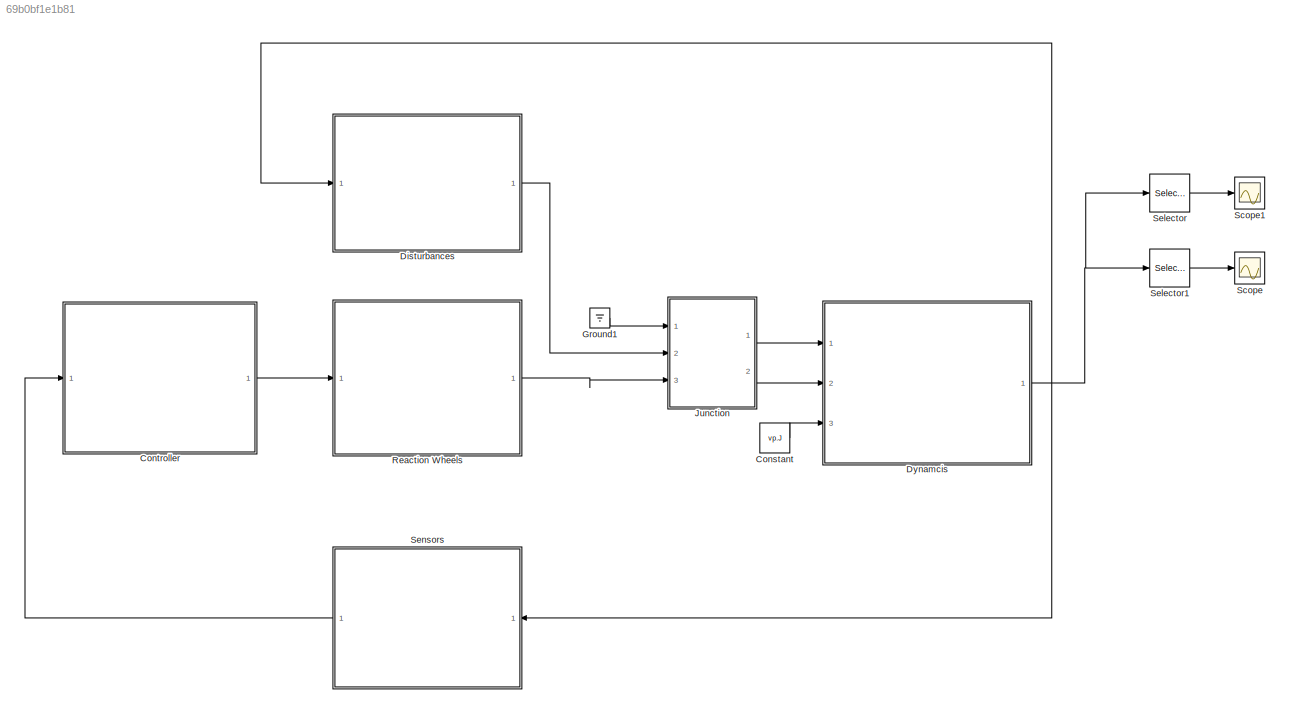
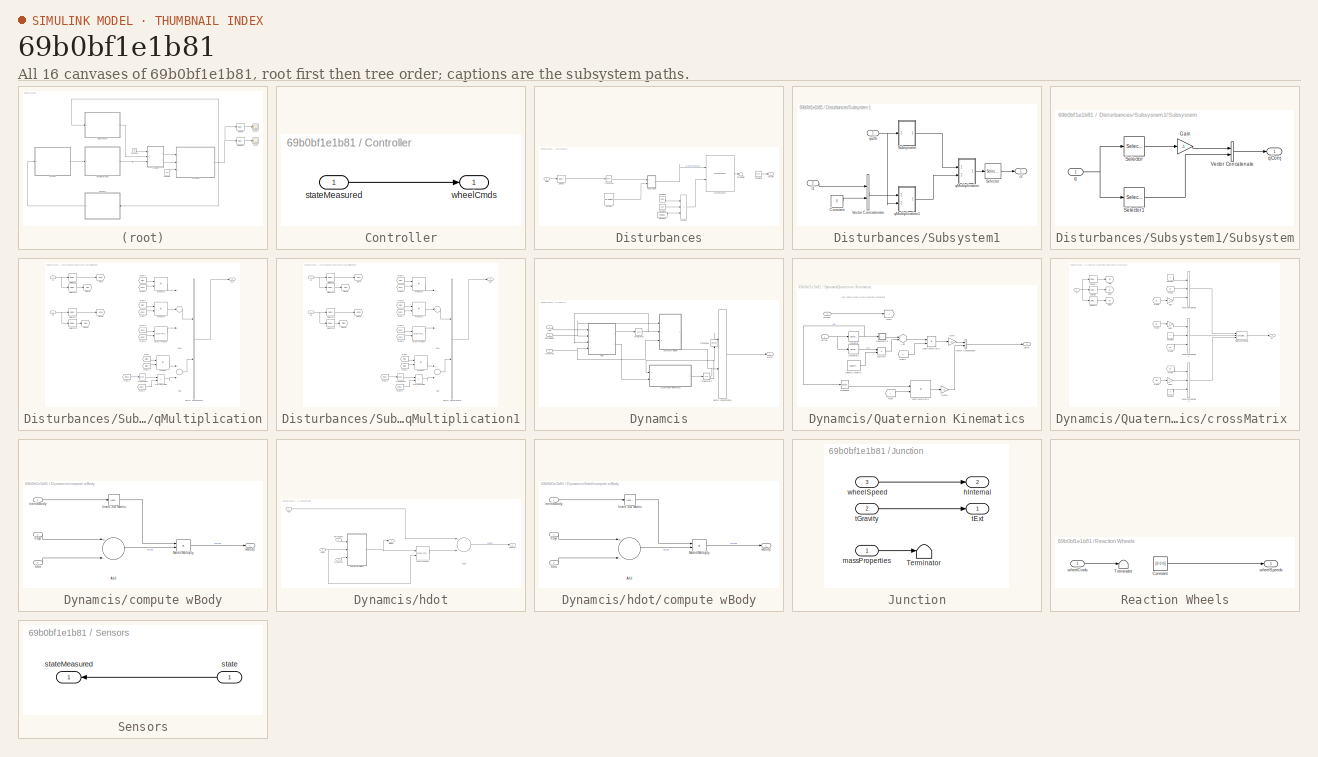
[diagram: thumbnail index - all 16 canvases of the model, root first then tree order]
MODEL slx_69b0bf1e1b81
KIND model
CONFIG AbsTol = auto
CONFIG EnableMultiTasking = off
CONFIG FixedStep = auto
CONFIG MaxStep = auto
CONFIG MinStep = auto
CONFIG RelTol = 1e-7
CONFIG SampleTimeConstraint = Unconstrained
CONFIG Solver = ode45
CONFIG SolverName = ode45
CONFIG StartTime = 0.0
CONFIG StopTime = 25
BLOCK [Constant] Constant
  Value = vp.J
BLOCK [SubSystem] Controller
  Ports = [1, 1]
  RequestExecContextInheritance = off
BLOCK [Inport] Controller/stateMeasured
  IconDisplay = Port number
BLOCK [Outport] Controller/wheelCmds
  IconDisplay = Port number
BLOCK [SubSystem] Disturbances
  Ports = [1, 1]
  RequestExecContextInheritance = off
BLOCK [Constant] Disturbances/Constant
  Value = vp.gVect
BLOCK [Constant] Disturbances/Constant1
  Value = vp.mass
BLOCK [Constant] Disturbances/Constant2
  Value = -vp.g
BLOCK [Constant] Disturbances/Constant3
  Value = vp.r32
BLOCK [Constant] Disturbances/Constant4
  Value = [0 0 0]
BLOCK [Reference] Disturbances/Cross Product  REF=vrlib/Utilities/Cross Product
  Ports = [2, 1]
  SourceBlock = vrlib/Utilities/Cross Product
  SourceProductBaseCode = VR
  SourceProductName = Simulink 3D Animation
  SourceType = Cross Product
BLOCK [Product] Disturbances/Product
  InputSameDT = off
  Inputs = 3
  OutDataTypeStr = Inherit: Inherit via internal rule
  Ports = [3, 1]
  RndMeth = Floor
  SaturateOnIntegerOverflow = off
BLOCK [Selector] Disturbances/Selector
  IndexOptions = Index vector (dialog)
  Indices = [1:4]
  InputPortWidth = 7
  OutputSizes = 1
  Ports = [1, 1]
BLOCK [SubSystem] Disturbances/Subsystem1
  Ports = [2, 1]
  RequestExecContextInheritance = off
BLOCK [Constant] Disturbances/Subsystem1/Constant
  Value = 0
BLOCK [Selector] Disturbances/Subsystem1/Selector
  IndexOptions = Index vector (dialog)
  Indices = [1:3]
  InputPortWidth = 4
  OutputSizes = 1
  Ports = [1, 1]
BLOCK [SubSystem] Disturbances/Subsystem1/Subsystem
  Ports = [1, 1]
  RequestExecContextInheritance = off
BLOCK [Gain] Disturbances/Subsystem1/Subsystem/Gain
  Gain = -1
  OutDataTypeStr = Inherit: Inherit via internal rule
  ParamDataTypeStr = Inherit: Inherit via internal rule
  SaturateOnIntegerOverflow = off
BLOCK [Selector] Disturbances/Subsystem1/Subsystem/Selector
  IndexOptions = Index vector (dialog)
  Indices = [1:3]
  InputPortWidth = 4
  OutputSizes = 1
  Ports = [1, 1]
BLOCK [Selector] Disturbances/Subsystem1/Subsystem/Selector1
  IndexOptions = Index vector (dialog)
  Indices = 4
  InputPortWidth = 4
  OutputSizes = 1
  Ports = [1, 1]
BLOCK [Concatenate] Disturbances/Subsystem1/Subsystem/Vector Concatenate
  Ports = [2, 1]
BLOCK [Inport] Disturbances/Subsystem1/Subsystem/q
  IconDisplay = Port number
BLOCK [Outport] Disturbances/Subsystem1/Subsystem/qConj
  IconDisplay = Port number
BLOCK [Concatenate] Disturbances/Subsystem1/Vector Concatenate
  Ports = [2, 1]
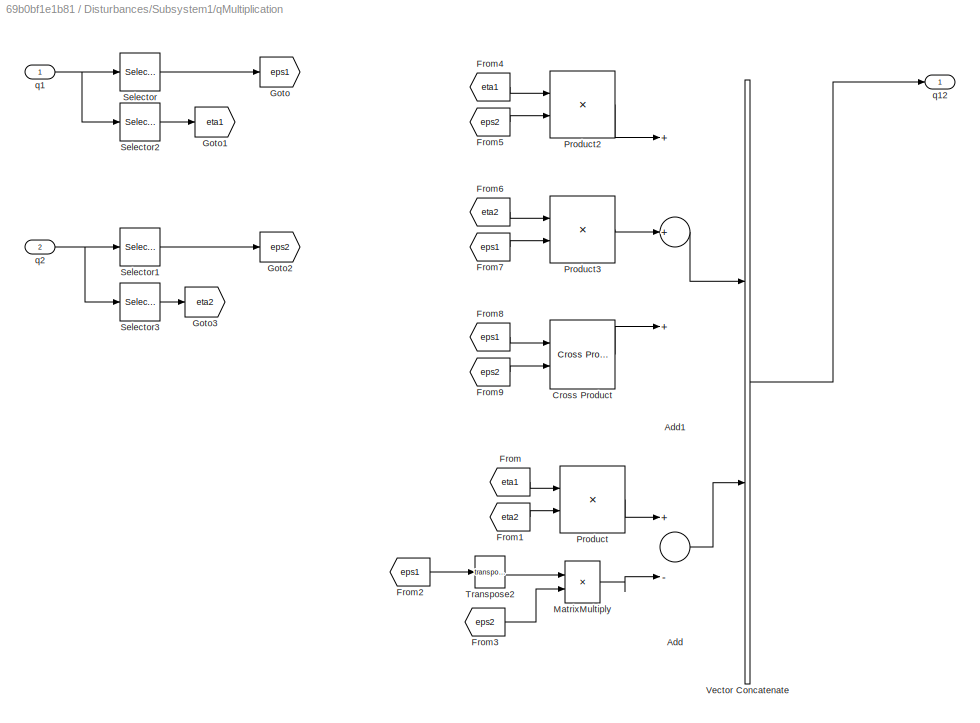
BLOCK [SubSystem] Disturbances/Subsystem1/qMultiplication
  Ports = [2, 1]
  RequestExecContextInheritance = off
BLOCK [Sum] Disturbances/Subsystem1/qMultiplication/Add
  InputSameDT = off
  Inputs = +-
  OutDataTypeStr = Inherit: Inherit via internal rule
  Ports = [2, 1]
  SaturateOnIntegerOverflow = off
BLOCK [Sum] Disturbances/Subsystem1/qMultiplication/Add1
  InputSameDT = off
  Inputs = +++
  OutDataTypeStr = Inherit: Inherit via internal rule
  Ports = [3, 1]
  SaturateOnIntegerOverflow = off
BLOCK [Reference] Disturbances/Subsystem1/qMultiplication/Cross Product  REF=vrlib/Utilities/Cross Product
  Ports = [2, 1]
  SourceBlock = vrlib/Utilities/Cross Product
  SourceProductBaseCode = VR
  SourceProductName = Simulink 3D Animation
  SourceType = Cross Product
BLOCK [From] Disturbances/Subsystem1/qMultiplication/From
  GotoTag = eta1
BLOCK [From] Disturbances/Subsystem1/qMultiplication/From1
  GotoTag = eta2
BLOCK [From] Disturbances/Subsystem1/qMultiplication/From2
  GotoTag = eps1
BLOCK [From] Disturbances/Subsystem1/qMultiplication/From3
  GotoTag = eps2
BLOCK [From] Disturbances/Subsystem1/qMultiplication/From4
  GotoTag = eta1
BLOCK [From] Disturbances/Subsystem1/qMultiplication/From5
  GotoTag = eps2
BLOCK [From] Disturbances/Subsystem1/qMultiplication/From6
  GotoTag = eta2
BLOCK [From] Disturbances/Subsystem1/qMultiplication/From7
  GotoTag = eps1
BLOCK [From] Disturbances/Subsystem1/qMultiplication/From8
  GotoTag = eps1
BLOCK [From] Disturbances/Subsystem1/qMultiplication/From9
  GotoTag = eps2
BLOCK [Goto] Disturbances/Subsystem1/qMultiplication/Goto
  GotoTag = eps1
BLOCK [Goto] Disturbances/Subsystem1/qMultiplication/Goto1
  GotoTag = eta1
BLOCK [Goto] Disturbances/Subsystem1/qMultiplication/Goto2
  GotoTag = eps2
BLOCK [Goto] Disturbances/Subsystem1/qMultiplication/Goto3
  GotoTag = eta2
BLOCK [Product] Disturbances/Subsystem1/qMultiplication/MatrixMultiply
  InputSameDT = off
  Multiplication = Matrix(*)
  OutDataTypeStr = Inherit: Inherit via internal rule
  Ports = [2, 1]
  RndMeth = Floor
  SaturateOnIntegerOverflow = off
BLOCK [Product] Disturbances/Subsystem1/qMultiplication/Product
  InputSameDT = off
  OutDataTypeStr = Inherit: Inherit via internal rule
  Ports = [2, 1]
  RndMeth = Floor
  SaturateOnIntegerOverflow = off
BLOCK [Product] Disturbances/Subsystem1/qMultiplication/Product2
  InputSameDT = off
  OutDataTypeStr = Inherit: Inherit via internal rule
  Ports = [2, 1]
  RndMeth = Floor
  SaturateOnIntegerOverflow = off
BLOCK [Product] Disturbances/Subsystem1/qMultiplication/Product3
  InputSameDT = off
  OutDataTypeStr = Inherit: Inherit via internal rule
  Ports = [2, 1]
  RndMeth = Floor
  SaturateOnIntegerOverflow = off
BLOCK [Selector] Disturbances/Subsystem1/qMultiplication/Selector
  IndexOptions = Index vector (dialog)
  Indices = [1:3]
  InputPortWidth = 4
  OutputSizes = 1
  Ports = [1, 1]
BLOCK [Selector] Disturbances/Subsystem1/qMultiplication/Selector1
  IndexOptions = Index vector (dialog)
  Indices = [1:3]
  InputPortWidth = 4
  OutputSizes = 1
  Ports = [1, 1]
BLOCK [Selector] Disturbances/Subsystem1/qMultiplication/Selector2
  IndexOptions = Index vector (dialog)
  Indices = 4
  InputPortWidth = 4
  OutputSizes = 1
  Ports = [1, 1]
BLOCK [Selector] Disturbances/Subsystem1/qMultiplication/Selector3
  IndexOptions = Index vector (dialog)
  Indices = 4
  InputPortWidth = 4
  OutputSizes = 1
  Ports = [1, 1]
BLOCK [Math] Disturbances/Subsystem1/qMultiplication/Transpose2
  Operator = transpose
  Ports = [1, 1]
BLOCK [Concatenate] Disturbances/Subsystem1/qMultiplication/Vector Concatenate
  Ports = [2, 1]
BLOCK [Inport] Disturbances/Subsystem1/qMultiplication/q1
  IconDisplay = Port number
BLOCK [Outport] Disturbances/Subsystem1/qMultiplication/q12
  IconDisplay = Port number
BLOCK [Inport] Disturbances/Subsystem1/qMultiplication/q2
  IconDisplay = Port number
  Port = 2
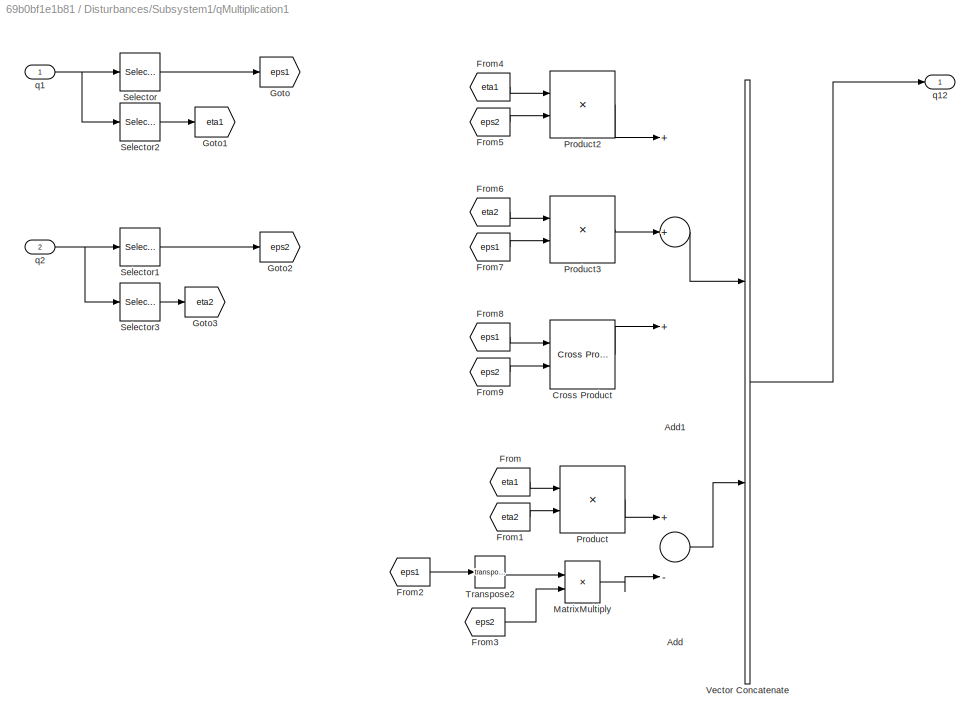
BLOCK [SubSystem] Disturbances/Subsystem1/qMultiplication1
  Ports = [2, 1]
  RequestExecContextInheritance = off
BLOCK [Sum] Disturbances/Subsystem1/qMultiplication1/Add
  InputSameDT = off
  Inputs = +-
  OutDataTypeStr = Inherit: Inherit via internal rule
  Ports = [2, 1]
  SaturateOnIntegerOverflow = off
BLOCK [Sum] Disturbances/Subsystem1/qMultiplication1/Add1
  InputSameDT = off
  Inputs = +++
  OutDataTypeStr = Inherit: Inherit via internal rule
  Ports = [3, 1]
  SaturateOnIntegerOverflow = off
BLOCK [Reference] Disturbances/Subsystem1/qMultiplication1/Cross Product  REF=vrlib/Utilities/Cross Product
  Ports = [2, 1]
  SourceBlock = vrlib/Utilities/Cross Product
  SourceProductBaseCode = VR
  SourceProductName = Simulink 3D Animation
  SourceType = Cross Product
BLOCK [From] Disturbances/Subsystem1/qMultiplication1/From
  GotoTag = eta1
BLOCK [From] Disturbances/Subsystem1/qMultiplication1/From1
  GotoTag = eta2
BLOCK [From] Disturbances/Subsystem1/qMultiplication1/From2
  GotoTag = eps1
BLOCK [From] Disturbances/Subsystem1/qMultiplication1/From3
  GotoTag = eps2
BLOCK [From] Disturbances/Subsystem1/qMultiplication1/From4
  GotoTag = eta1
BLOCK [From] Disturbances/Subsystem1/qMultiplication1/From5
  GotoTag = eps2
BLOCK [From] Disturbances/Subsystem1/qMultiplication1/From6
  GotoTag = eta2
BLOCK [From] Disturbances/Subsystem1/qMultiplication1/From7
  GotoTag = eps1
BLOCK [From] Disturbances/Subsystem1/qMultiplication1/From8
  GotoTag = eps1
BLOCK [From] Disturbances/Subsystem1/qMultiplication1/From9
  GotoTag = eps2
BLOCK [Goto] Disturbances/Subsystem1/qMultiplication1/Goto
  GotoTag = eps1
BLOCK [Goto] Disturbances/Subsystem1/qMultiplication1/Goto1
  GotoTag = eta1
BLOCK [Goto] Disturbances/Subsystem1/qMultiplication1/Goto2
  GotoTag = eps2
BLOCK [Goto] Disturbances/Subsystem1/qMultiplication1/Goto3
  GotoTag = eta2
BLOCK [Product] Disturbances/Subsystem1/qMultiplication1/MatrixMultiply
  InputSameDT = off
  Multiplication = Matrix(*)
  OutDataTypeStr = Inherit: Inherit via internal rule
  Ports = [2, 1]
  RndMeth = Floor
  SaturateOnIntegerOverflow = off
BLOCK [Product] Disturbances/Subsystem1/qMultiplication1/Product
  InputSameDT = off
  OutDataTypeStr = Inherit: Inherit via internal rule
  Ports = [2, 1]
  RndMeth = Floor
  SaturateOnIntegerOverflow = off
BLOCK [Product] Disturbances/Subsystem1/qMultiplication1/Product2
  InputSameDT = off
  OutDataTypeStr = Inherit: Inherit via internal rule
  Ports = [2, 1]
  RndMeth = Floor
  SaturateOnIntegerOverflow = off
BLOCK [Product] Disturbances/Subsystem1/qMultiplication1/Product3
  InputSameDT = off
  OutDataTypeStr = Inherit: Inherit via internal rule
  Ports = [2, 1]
  RndMeth = Floor
  SaturateOnIntegerOverflow = off
BLOCK [Selector] Disturbances/Subsystem1/qMultiplication1/Selector
  IndexOptions = Index vector (dialog)
  Indices = [1:3]
  InputPortWidth = 4
  OutputSizes = 1
  Ports = [1, 1]
BLOCK [Selector] Disturbances/Subsystem1/qMultiplication1/Selector1
  IndexOptions = Index vector (dialog)
  Indices = [1:3]
  InputPortWidth = 4
  OutputSizes = 1
  Ports = [1, 1]
BLOCK [Selector] Disturbances/Subsystem1/qMultiplication1/Selector2
  IndexOptions = Index vector (dialog)
  Indices = 4
  InputPortWidth = 4
  OutputSizes = 1
  Ports = [1, 1]
BLOCK [Selector] Disturbances/Subsystem1/qMultiplication1/Selector3
  IndexOptions = Index vector (dialog)
  Indices = 4
  InputPortWidth = 4
  OutputSizes = 1
  Ports = [1, 1]
BLOCK [Math] Disturbances/Subsystem1/qMultiplication1/Transpose2
  Operator = transpose
  Ports = [1, 1]
BLOCK [Concatenate] Disturbances/Subsystem1/qMultiplication1/Vector Concatenate
  Ports = [2, 1]
BLOCK [Inport] Disturbances/Subsystem1/qMultiplication1/q1
  IconDisplay = Port number
BLOCK [Outport] Disturbances/Subsystem1/qMultiplication1/q12
  IconDisplay = Port number
BLOCK [Inport] Disturbances/Subsystem1/qMultiplication1/q2
  IconDisplay = Port number
  Port = 2
BLOCK [Inport] Disturbances/Subsystem1/qa2b
  IconDisplay = Port number
BLOCK [Inport] Disturbances/Subsystem1/r1
  IconDisplay = Port number
  Port = 2
BLOCK [Outport] Disturbances/Subsystem1/r2
  IconDisplay = Port number
BLOCK [Terminator] Disturbances/Terminator
BLOCK [Math] Disturbances/Transpose
  Operator = transpose
  Ports = [1, 1]
BLOCK [Inport] Disturbances/state 
  IconDisplay = Port number
BLOCK [Outport] Disturbances/tGravity
  IconDisplay = Port number
BLOCK [SubSystem] Dynamcis
  Ports = [3, 1]
  RequestExecContextInheritance = off
BLOCK [Integrator] Dynamcis/Integrator
  InitialCondition = Hsys0
  Ports = [1, 1]
BLOCK [Integrator] Dynamcis/Integrator1
  InitialCondition = qBody0
  Ports = [1, 1]
BLOCK [SubSystem] Dynamcis/Quaternion Kinematics
  Ports = [2, 1]
  RequestExecContextInheritance = off
BLOCK [Sum] Dynamcis/Quaternion Kinematics/Add
  InputSameDT = off
  OutDataTypeStr = Inherit: Inherit via internal rule
  Ports = [2, 1]
  SaturateOnIntegerOverflow = off
BLOCK [From] Dynamcis/Quaternion Kinematics/From
BLOCK [From] Dynamcis/Quaternion Kinematics/From1
BLOCK [Gain] Dynamcis/Quaternion Kinematics/Gain
  Gain = 1/2
  OutDataTypeStr = Inherit: Inherit via internal rule
  ParamDataTypeStr = Inherit: Inherit via internal rule
  SaturateOnIntegerOverflow = off
BLOCK [Gain] Dynamcis/Quaternion Kinematics/Gain1
  Gain = -1/2
  OutDataTypeStr = Inherit: Inherit via internal rule
  ParamDataTypeStr = Inherit: Inherit via internal rule
  SaturateOnIntegerOverflow = off
BLOCK [Goto] Dynamcis/Quaternion Kinematics/Goto
BLOCK [Reference] Dynamcis/Quaternion Kinematics/Identity Matrix  REF=dspmtrx3/Identity Matrix
  Ports = [0, 1]
  SourceBlock = dspmtrx3/Identity Matrix
  SourceProductBaseCode = DS
  SourceProductName = DSP System Toolbox
  SourceType = Identity Matrix
BLOCK [Product] Dynamcis/Quaternion Kinematics/MatrixMultiply1
  InputSameDT = off
  Multiplication = Matrix(*)
  OutDataTypeStr = Inherit: Inherit via internal rule
  Ports = [2, 1]
  RndMeth = Floor
  SaturateOnIntegerOverflow = off
BLOCK [Product] Dynamcis/Quaternion Kinematics/MatrixMultiply2
  InputSameDT = off
  Multiplication = Matrix(*)
  OutDataTypeStr = Inherit: Inherit via internal rule
  Ports = [2, 1]
  RndMeth = Floor
  SaturateOnIntegerOverflow = off
BLOCK [Product] Dynamcis/Quaternion Kinematics/Multiply
  InputSameDT = off
  OutDataTypeStr = Inherit: Inherit via internal rule
  Ports = [2, 1]
  RndMeth = Floor
  SaturateOnIntegerOverflow = off
BLOCK [Selector] Dynamcis/Quaternion Kinematics/Selector
  IndexOptions = Index vector (dialog)
  Indices = [1:3]
  InputPortWidth = 4
  OutputSizes = 1
  Ports = [1, 1]
BLOCK [Selector] Dynamcis/Quaternion Kinematics/Selector1
  IndexOptions = Index vector (dialog)
  Indices = 4
  InputPortWidth = 4
  OutputSizes = 1
  Ports = [1, 1]
BLOCK [Math] Dynamcis/Quaternion Kinematics/Transpose
  Operator = transpose
  Ports = [1, 1]
BLOCK [Concatenate] Dynamcis/Quaternion Kinematics/Vector Concatenate
  Ports = [2, 1]
BLOCK [SubSystem] Dynamcis/Quaternion Kinematics/crossMatrix 
  Ports = [1, 1]
  RequestExecContextInheritance = off
BLOCK [Constant] Dynamcis/Quaternion Kinematics/crossMatrix /Constant
  Value = 0
BLOCK [Constant] Dynamcis/Quaternion Kinematics/crossMatrix /Constant1
  Value = 0
BLOCK [Constant] Dynamcis/Quaternion Kinematics/crossMatrix /Constant2
  Value = 0
BLOCK [From] Dynamcis/Quaternion Kinematics/crossMatrix /From1
  GotoTag = ay
BLOCK [From] Dynamcis/Quaternion Kinematics/crossMatrix /From3
  GotoTag = az
BLOCK [From] Dynamcis/Quaternion Kinematics/crossMatrix /From4
  GotoTag = az
BLOCK [From] Dynamcis/Quaternion Kinematics/crossMatrix /From5
  GotoTag = ax
BLOCK [From] Dynamcis/Quaternion Kinematics/crossMatrix /From6
  GotoTag = ay
BLOCK [From] Dynamcis/Quaternion Kinematics/crossMatrix /From7
  GotoTag = ax
BLOCK [Gain] Dynamcis/Quaternion Kinematics/crossMatrix /Gain
  Gain = -1
  OutDataTypeStr = Inherit: Inherit via internal rule
  ParamDataTypeStr = Inherit: Inherit via internal rule
  SaturateOnIntegerOverflow = off
BLOCK [Gain] Dynamcis/Quaternion Kinematics/crossMatrix /Gain1
  Gain = -1
  OutDataTypeStr = Inherit: Inherit via internal rule
  ParamDataTypeStr = Inherit: Inherit via internal rule
  SaturateOnIntegerOverflow = off
BLOCK [Gain] Dynamcis/Quaternion Kinematics/crossMatrix /Gain2
  Gain = -1
  OutDataTypeStr = Inherit: Inherit via internal rule
  ParamDataTypeStr = Inherit: Inherit via internal rule
  SaturateOnIntegerOverflow = off
BLOCK [Goto] Dynamcis/Quaternion Kinematics/crossMatrix /Goto
  GotoTag = ax
BLOCK [Goto] Dynamcis/Quaternion Kinematics/crossMatrix /Goto1
  GotoTag = ay
BLOCK [Goto] Dynamcis/Quaternion Kinematics/crossMatrix /Goto2
  GotoTag = az
BLOCK [Concatenate] Dynamcis/Quaternion Kinematics/crossMatrix /Matrix Concatenate
  ConcatenateDimension = 2
  Mode = Multidimensional array
  NumInputs = 3
  Ports = [3, 1]
BLOCK [Selector] Dynamcis/Quaternion Kinematics/crossMatrix /Selector
  IndexOptions = Index vector (dialog)
  Indices = 2
  InputPortWidth = 3
  OutputSizes = 1
  Ports = [1, 1]
BLOCK [Selector] Dynamcis/Quaternion Kinematics/crossMatrix /Selector1
  IndexOptions = Index vector (dialog)
  Indices = 1
  InputPortWidth = 3
  OutputSizes = 1
  Ports = [1, 1]
BLOCK [Selector] Dynamcis/Quaternion Kinematics/crossMatrix /Selector2
  IndexOptions = Index vector (dialog)
  Indices = 3
  InputPortWidth = 3
  OutputSizes = 1
  Ports = [1, 1]
BLOCK [Concatenate] Dynamcis/Quaternion Kinematics/crossMatrix /Vector Concatenate
  NumInputs = 3
  Ports = [3, 1]
BLOCK [Concatenate] Dynamcis/Quaternion Kinematics/crossMatrix /Vector Concatenate1
  NumInputs = 3
  Ports = [3, 1]
BLOCK [Concatenate] Dynamcis/Quaternion Kinematics/crossMatrix /Vector Concatenate2
  NumInputs = 3
  Ports = [3, 1]
BLOCK [Inport] Dynamcis/Quaternion Kinematics/crossMatrix /a
  IconDisplay = Port number
BLOCK [Outport] Dynamcis/Quaternion Kinematics/crossMatrix /aX
  IconDisplay = Port number
BLOCK [Outport] Dynamcis/Quaternion Kinematics/qDot
  IconDisplay = Port number
BLOCK [Inport] Dynamcis/Quaternion Kinematics/qPrev
  IconDisplay = Port number
BLOCK [Inport] Dynamcis/Quaternion Kinematics/wBody
  IconDisplay = Port number
  Port = 2
BLOCK [Math] Dynamcis/Transpose
  Operator = transpose
  Ports = [1, 1]
BLOCK [Concatenate] Dynamcis/Vector Concatenate
  Ports = [2, 1]
BLOCK [SubSystem] Dynamcis/compute wBody
  Ports = [3, 1]
  RequestExecContextInheritance = off
BLOCK [Sum] Dynamcis/compute wBody/Add
  InputSameDT = off
  Inputs = +-
  OutDataTypeStr = Inherit: Inherit via internal rule
  Ports = [2, 1]
  SaturateOnIntegerOverflow = off
BLOCK [Reference] Dynamcis/compute wBody/Invert 3x3 Matrix  REF=aerolibutil/Invert 
3x3 Matrix
  Ports = [1, 1]
  SourceBlock = aerolibutil/Invert \n3x3 Matrix
  SourceProductBaseCode = AE
  SourceProductName = Aerospace Blockset
  SourceType = Invert 3x3 Matrix
BLOCK [Product] Dynamcis/compute wBody/Matrix Multiply
  InputSameDT = off
  Multiplication = Matrix(*)
  OutDataTypeStr = Inherit: Inherit via internal rule
  Ports = [2, 1]
  RndMeth = Floor
  SaturateOnIntegerOverflow = off
BLOCK [Inport] Dynamcis/compute wBody/hInt
  IconDisplay = Port number
  Port = 3
BLOCK [Inport] Dynamcis/compute wBody/hSys
  IconDisplay = Port number
  Port = 2
BLOCK [Inport] Dynamcis/compute wBody/inertiaBody
  IconDisplay = Port number
BLOCK [Outport] Dynamcis/compute wBody/wBody
  IconDisplay = Port number
BLOCK [Inport] Dynamcis/hInternal
  IconDisplay = Port number
  Port = 2
BLOCK [SubSystem] Dynamcis/hdot
  Ports = [4, 2]
  RequestExecContextInheritance = off
BLOCK [Sum] Dynamcis/hdot/Add1
  InputSameDT = off
  Inputs = +-
  OutDataTypeStr = Inherit: Inherit via internal rule
  Ports = [2, 1]
  SaturateOnIntegerOverflow = off
BLOCK [Reference] Dynamcis/hdot/Cross Product  REF=vrlib/Utilities/Cross Product
  Ports = [2, 1]
  SourceBlock = vrlib/Utilities/Cross Product
  SourceProductBaseCode = VR
  SourceProductName = Simulink 3D Animation
  SourceType = Cross Product
BLOCK [SubSystem] Dynamcis/hdot/compute wBody
  Ports = [3, 1]
  RequestExecContextInheritance = off
BLOCK [Sum] Dynamcis/hdot/compute wBody/Add
  InputSameDT = off
  Inputs = +-
  OutDataTypeStr = Inherit: Inherit via internal rule
  Ports = [2, 1]
  SaturateOnIntegerOverflow = off
BLOCK [Reference] Dynamcis/hdot/compute wBody/Invert 3x3 Matrix  REF=aerolibutil/Invert 
3x3 Matrix
  Ports = [1, 1]
  SourceBlock = aerolibutil/Invert \n3x3 Matrix
  SourceProductBaseCode = AE
  SourceProductName = Aerospace Blockset
  SourceType = Invert 3x3 Matrix
BLOCK [Product] Dynamcis/hdot/compute wBody/Matrix Multiply
  InputSameDT = off
  Multiplication = Matrix(*)
  OutDataTypeStr = Inherit: Inherit via internal rule
  Ports = [2, 1]
  RndMeth = Floor
  SaturateOnIntegerOverflow = off
BLOCK [Inport] Dynamcis/hdot/compute wBody/hInt
  IconDisplay = Port number
  Port = 3
BLOCK [Inport] Dynamcis/hdot/compute wBody/hSys
  IconDisplay = Port number
  Port = 2
BLOCK [Inport] Dynamcis/hdot/compute wBody/inertiaBody
  IconDisplay = Port number
BLOCK [Outport] Dynamcis/hdot/compute wBody/wBody
  IconDisplay = Port number
BLOCK [Outport] Dynamcis/hdot/hDotSys
  IconDisplay = Port number
BLOCK [Inport] Dynamcis/hdot/hInternal
  IconDisplay = Port number
  Port = 4
BLOCK [Inport] Dynamcis/hdot/hSys
  IconDisplay = Port number
  Port = 3
BLOCK [Inport] Dynamcis/hdot/inertiaBody
  IconDisplay = Port number
  Port = 2
BLOCK [Inport] Dynamcis/hdot/tExt
  IconDisplay = Port number
BLOCK [Outport] Dynamcis/hdot/wBody
  IconDisplay = Port number
  Port = 2
BLOCK [Inport] Dynamcis/inertiaBody
  IconDisplay = Port number
  Port = 3
BLOCK [Outport] Dynamcis/state
  IconDisplay = Port number
BLOCK [Inport] Dynamcis/tExt
  IconDisplay = Port number
BLOCK [Ground] Ground1
BLOCK [SubSystem] Junction
  Ports = [3, 2]
  RequestExecContextInheritance = off
BLOCK [Terminator] Junction/Terminator
BLOCK [Outport] Junction/hInternal
  IconDisplay = Port number
  Port = 2
BLOCK [Inport] Junction/massProperties
  IconDisplay = Port number
BLOCK [Outport] Junction/tExt
  IconDisplay = Port number
BLOCK [Inport] Junction/tGravity
  IconDisplay = Port number
  Port = 2
BLOCK [Inport] Junction/wheelSpeed
  IconDisplay = Port number
  Port = 3
BLOCK [SubSystem] Reaction Wheels
  Ports = [1, 1]
  RequestExecContextInheritance = off
BLOCK [Constant] Reaction Wheels/Constant
  Value = [0 0 0]
BLOCK [Terminator] Reaction Wheels/Terminator
BLOCK [Inport] Reaction Wheels/wheelCmds
  IconDisplay = Port number
BLOCK [Outport] Reaction Wheels/wheelSpeeds
  IconDisplay = Port number
BLOCK [Scope] Scope
  Floating = off
  NumInputPorts = 1
  Ports = [1]
  ScopeSpecificationString = Simulink.scopes.TimeScopeBlockCfg('CurrentConfiguration', extmgr.ConfigurationSet(extmgr.Configuration('Core','General UI',true),extmgr.Configuration('Core','Source UI',true),extmgr.Configuration('Sources','WiredSimulink',true,'DataLoggingVariableName','ScopeData1'),extmgr.Configuration('Visuals','Time Domain',true,'SerializedDisplays',{struct('MinYLimReal','-0.7031','MaxYLimReal','0.7031','YLabel...<+1421ch>
BLOCK [Scope] Scope1
  Floating = off
  NumInputPorts = 1
  Ports = [1]
  ScopeSpecificationString = Simulink.scopes.TimeScopeBlockCfg('CurrentConfiguration', extmgr.ConfigurationSet(extmgr.Configuration('Core','General UI',true),extmgr.Configuration('Core','Source UI',true),extmgr.Configuration('Sources','WiredSimulink',true),extmgr.Configuration('Visuals','Time Domain',true,'SerializedDisplays',{struct('MinYLimReal','-1','MaxYLimReal','1','YLabelReal','','MinYLimMag','0.00000','MaxYLimMag','1.1...<+1418ch>
BLOCK [Selector] Selector
  IndexOptions = Index vector (dialog)
  Indices = [1:4]
  InputPortWidth = 7
  OutputSizes = 1
  Ports = [1, 1]
BLOCK [Selector] Selector1
  IndexOptions = Index vector (dialog)
  Indices = [5:7]
  InputPortWidth = 7
  OutputSizes = 1
  Ports = [1, 1]
BLOCK [SubSystem] Sensors
  Ports = [1, 1]
  RequestExecContextInheritance = off
BLOCK [Inport] Sensors/state
  IconDisplay = Port number
BLOCK [Outport] Sensors/stateMeasured
  IconDisplay = Port number
ANNOTATION Dynamcis/Quaternion Kinematics: may need to add a more accurate integrator
LINE Constant:1 -> Dynamcis:3
LINE Controller/stateMeasured:1 -> Controller/wheelCmds:1
LINE Controller:1 -> Reaction Wheels:1
LINE Disturbances/Constant1:1 -> Disturbances/Product:3
LINE Disturbances/Constant2:1 -> Disturbances/Product:2
LINE Disturbances/Constant3:1 -> Disturbances/Product:1
LINE Disturbances/Constant4:1 -> Disturbances/tGravity:1
LINE Disturbances/Constant:1 -> Disturbances/Subsystem1:2
LINE Disturbances/Cross Product:1 -> Disturbances/Terminator:1
LINE Disturbances/Product:1 -> Disturbances/Cross Product:2
LINE Disturbances/Selector:1 -> Disturbances/Transpose:1
LINE Disturbances/Subsystem1/Constant:1 -> Disturbances/Subsystem1/Vector Concatenate:2
LINE Disturbances/Subsystem1/Selector:1 -> Disturbances/Subsystem1/r2:1
LINE Disturbances/Subsystem1/Subsystem/Gain:1 -> Disturbances/Subsystem1/Subsystem/Vector Concatenate:1
LINE Disturbances/Subsystem1/Subsystem/Selector1:1 -> Disturbances/Subsystem1/Subsystem/Vector Concatenate:2
LINE Disturbances/Subsystem1/Subsystem/Selector:1 -> Disturbances/Subsystem1/Subsystem/Gain:1
LINE Disturbances/Subsystem1/Subsystem/Vector Concatenate:1 -> Disturbances/Subsystem1/Subsystem/qConj:1
NET Disturbances/Subsystem1/Subsystem/q:1 -> Disturbances/Subsystem1/Subsystem/Selector1:1, Disturbances/Subsystem1/Subsystem/Selector:1
LINE Disturbances/Subsystem1/Subsystem:1 -> Disturbances/Subsystem1/qMultiplication:1
LINE Disturbances/Subsystem1/Vector Concatenate:1 -> Disturbances/Subsystem1/qMultiplication1:1
LINE Disturbances/Subsystem1/qMultiplication/Add1:1 -> Disturbances/Subsystem1/qMultiplication/Vector Concatenate:1
LINE Disturbances/Subsystem1/qMultiplication/Add:1 -> Disturbances/Subsystem1/qMultiplication/Vector Concatenate:2
LINE Disturbances/Subsystem1/qMultiplication/Cross Product:1 -> Disturbances/Subsystem1/qMultiplication/Add1:3
LINE Disturbances/Subsystem1/qMultiplication/From1:1 -> Disturbances/Subsystem1/qMultiplication/Product:2
LINE Disturbances/Subsystem1/qMultiplication/From2:1 -> Disturbances/Subsystem1/qMultiplication/Transpose2:1
LINE Disturbances/Subsystem1/qMultiplication/From3:1 -> Disturbances/Subsystem1/qMultiplication/MatrixMultiply:2
LINE Disturbances/Subsystem1/qMultiplication/From4:1 -> Disturbances/Subsystem1/qMultiplication/Product2:1
LINE Disturbances/Subsystem1/qMultiplication/From5:1 -> Disturbances/Subsystem1/qMultiplication/Product2:2
LINE Disturbances/Subsystem1/qMultiplication/From6:1 -> Disturbances/Subsystem1/qMultiplication/Product3:1
LINE Disturbances/Subsystem1/qMultiplication/From7:1 -> Disturbances/Subsystem1/qMultiplication/Product3:2
LINE Disturbances/Subsystem1/qMultiplication/From8:1 -> Disturbances/Subsystem1/qMultiplication/Cross Product:1
LINE Disturbances/Subsystem1/qMultiplication/From9:1 -> Disturbances/Subsystem1/qMultiplication/Cross Product:2
LINE Disturbances/Subsystem1/qMultiplication/From:1 -> Disturbances/Subsystem1/qMultiplication/Product:1
LINE Disturbances/Subsystem1/qMultiplication/MatrixMultiply:1 -> Disturbances/Subsystem1/qMultiplication/Add:2
LINE Disturbances/Subsystem1/qMultiplication/Product2:1 -> Disturbances/Subsystem1/qMultiplication/Add1:1
LINE Disturbances/Subsystem1/qMultiplication/Product3:1 -> Disturbances/Subsystem1/qMultiplication/Add1:2
LINE Disturbances/Subsystem1/qMultiplication/Product:1 -> Disturbances/Subsystem1/qMultiplication/Add:1
LINE Disturbances/Subsystem1/qMultiplication/Selector1:1 -> Disturbances/Subsystem1/qMultiplication/Goto2:1
LINE Disturbances/Subsystem1/qMultiplication/Selector2:1 -> Disturbances/Subsystem1/qMultiplication/Goto1:1
LINE Disturbances/Subsystem1/qMultiplication/Selector3:1 -> Disturbances/Subsystem1/qMultiplication/Goto3:1
LINE Disturbances/Subsystem1/qMultiplication/Selector:1 -> Disturbances/Subsystem1/qMultiplication/Goto:1
LINE Disturbances/Subsystem1/qMultiplication/Transpose2:1 -> Disturbances/Subsystem1/qMultiplication/MatrixMultiply:1
LINE Disturbances/Subsystem1/qMultiplication/Vector Concatenate:1 -> Disturbances/Subsystem1/qMultiplication/q12:1
NET Disturbances/Subsystem1/qMultiplication/q1:1 -> Disturbances/Subsystem1/qMultiplication/Selector2:1, Disturbances/Subsystem1/qMultiplication/Selector:1
NET Disturbances/Subsystem1/qMultiplication/q2:1 -> Disturbances/Subsystem1/qMultiplication/Selector1:1, Disturbances/Subsystem1/qMultiplication/Selector3:1
LINE Disturbances/Subsystem1/qMultiplication1/Add1:1 -> Disturbances/Subsystem1/qMultiplication1/Vector Concatenate:1
LINE Disturbances/Subsystem1/qMultiplication1/Add:1 -> Disturbances/Subsystem1/qMultiplication1/Vector Concatenate:2
LINE Disturbances/Subsystem1/qMultiplication1/Cross Product:1 -> Disturbances/Subsystem1/qMultiplication1/Add1:3
LINE Disturbances/Subsystem1/qMultiplication1/From1:1 -> Disturbances/Subsystem1/qMultiplication1/Product:2
LINE Disturbances/Subsystem1/qMultiplication1/From2:1 -> Disturbances/Subsystem1/qMultiplication1/Transpose2:1
LINE Disturbances/Subsystem1/qMultiplication1/From3:1 -> Disturbances/Subsystem1/qMultiplication1/MatrixMultiply:2
LINE Disturbances/Subsystem1/qMultiplication1/From4:1 -> Disturbances/Subsystem1/qMultiplication1/Product2:1
LINE Disturbances/Subsystem1/qMultiplication1/From5:1 -> Disturbances/Subsystem1/qMultiplication1/Product2:2
LINE Disturbances/Subsystem1/qMultiplication1/From6:1 -> Disturbances/Subsystem1/qMultiplication1/Product3:1
LINE Disturbances/Subsystem1/qMultiplication1/From7:1 -> Disturbances/Subsystem1/qMultiplication1/Product3:2
LINE Disturbances/Subsystem1/qMultiplication1/From8:1 -> Disturbances/Subsystem1/qMultiplication1/Cross Product:1
LINE Disturbances/Subsystem1/qMultiplication1/From9:1 -> Disturbances/Subsystem1/qMultiplication1/Cross Product:2
LINE Disturbances/Subsystem1/qMultiplication1/From:1 -> Disturbances/Subsystem1/qMultiplication1/Product:1
LINE Disturbances/Subsystem1/qMultiplication1/MatrixMultiply:1 -> Disturbances/Subsystem1/qMultiplication1/Add:2
LINE Disturbances/Subsystem1/qMultiplication1/Product2:1 -> Disturbances/Subsystem1/qMultiplication1/Add1:1
LINE Disturbances/Subsystem1/qMultiplication1/Product3:1 -> Disturbances/Subsystem1/qMultiplication1/Add1:2
LINE Disturbances/Subsystem1/qMultiplication1/Product:1 -> Disturbances/Subsystem1/qMultiplication1/Add:1
LINE Disturbances/Subsystem1/qMultiplication1/Selector1:1 -> Disturbances/Subsystem1/qMultiplication1/Goto2:1
LINE Disturbances/Subsystem1/qMultiplication1/Selector2:1 -> Disturbances/Subsystem1/qMultiplication1/Goto1:1
LINE Disturbances/Subsystem1/qMultiplication1/Selector3:1 -> Disturbances/Subsystem1/qMultiplication1/Goto3:1
LINE Disturbances/Subsystem1/qMultiplication1/Selector:1 -> Disturbances/Subsystem1/qMultiplication1/Goto:1
LINE Disturbances/Subsystem1/qMultiplication1/Transpose2:1 -> Disturbances/Subsystem1/qMultiplication1/MatrixMultiply:1
LINE Disturbances/Subsystem1/qMultiplication1/Vector Concatenate:1 -> Disturbances/Subsystem1/qMultiplication1/q12:1
NET Disturbances/Subsystem1/qMultiplication1/q1:1 -> Disturbances/Subsystem1/qMultiplication1/Selector2:1, Disturbances/Subsystem1/qMultiplication1/Selector:1
NET Disturbances/Subsystem1/qMultiplication1/q2:1 -> Disturbances/Subsystem1/qMultiplication1/Selector1:1, Disturbances/Subsystem1/qMultiplication1/Selector3:1
LINE Disturbances/Subsystem1/qMultiplication1:1 -> Disturbances/Subsystem1/qMultiplication:2
LINE Disturbances/Subsystem1/qMultiplication:1 -> Disturbances/Subsystem1/Selector:1
NET Disturbances/Subsystem1/qa2b:1 -> Disturbances/Subsystem1/Subsystem:1, Disturbances/Subsystem1/qMultiplication1:2
LINE Disturbances/Subsystem1/r1:1 -> Disturbances/Subsystem1/Vector Concatenate:1
LINE Disturbances/Subsystem1:1 -> Disturbances/Cross Product:1
LINE Disturbances/Transpose:1 -> Disturbances/Subsystem1:1
LINE Disturbances/state :1 -> Disturbances/Selector:1
LINE Disturbances:1 -> Junction:2
NET Dynamcis/Integrator1:1 -> Dynamcis/Quaternion Kinematics:1, Dynamcis/Transpose:1
NET Dynamcis/Integrator:1 -> Dynamcis/compute wBody:2, Dynamcis/hdot:3
LINE Dynamcis/Quaternion Kinematics/Add:1 -> Dynamcis/Quaternion Kinematics/MatrixMultiply2:1
LINE Dynamcis/Quaternion Kinematics/From1:1 -> Dynamcis/Quaternion Kinematics/MatrixMultiply2:2
LINE Dynamcis/Quaternion Kinematics/From:1 -> Dynamcis/Quaternion Kinematics/MatrixMultiply1:2
LINE Dynamcis/Quaternion Kinematics/Gain1:1 -> Dynamcis/Quaternion Kinematics/Vector Concatenate:2
LINE Dynamcis/Quaternion Kinematics/Gain:1 -> Dynamcis/Quaternion Kinematics/Vector Concatenate:1
LINE Dynamcis/Quaternion Kinematics/Identity Matrix:1 -> Dynamcis/Quaternion Kinematics/Multiply:2
LINE Dynamcis/Quaternion Kinematics/MatrixMultiply1:1 -> Dynamcis/Quaternion Kinematics/Gain1:1
LINE Dynamcis/Quaternion Kinematics/MatrixMultiply2:1 -> Dynamcis/Quaternion Kinematics/Gain:1
LINE Dynamcis/Quaternion Kinematics/Multiply:1 -> Dynamcis/Quaternion Kinematics/Add:2
LINE Dynamcis/Quaternion Kinematics/Selector1:1 -> Dynamcis/Quaternion Kinematics/Multiply:1
NET Dynamcis/Quaternion Kinematics/Selector:1 -> Dynamcis/Quaternion Kinematics/Transpose:1, Dynamcis/Quaternion Kinematics/crossMatrix :1
LINE Dynamcis/Quaternion Kinematics/Transpose:1 -> Dynamcis/Quaternion Kinematics/MatrixMultiply1:1
LINE Dynamcis/Quaternion Kinematics/Vector Concatenate:1 -> Dynamcis/Quaternion Kinematics/qDot:1
LINE Dynamcis/Quaternion Kinematics/crossMatrix /Constant1:1 -> Dynamcis/Quaternion Kinematics/crossMatrix /Vector Concatenate1:2
LINE Dynamcis/Quaternion Kinematics/crossMatrix /Constant2:1 -> Dynamcis/Quaternion Kinematics/crossMatrix /Vector Concatenate2:3
LINE Dynamcis/Quaternion Kinematics/crossMatrix /Constant:1 -> Dynamcis/Quaternion Kinematics/crossMatrix /Vector Concatenate:1
LINE Dynamcis/Quaternion Kinematics/crossMatrix /From1:1 -> Dynamcis/Quaternion Kinematics/crossMatrix /Gain:1
LINE Dynamcis/Quaternion Kinematics/crossMatrix /From3:1 -> Dynamcis/Quaternion Kinematics/crossMatrix /Vector Concatenate:2
LINE Dynamcis/Quaternion Kinematics/crossMatrix /From4:1 -> Dynamcis/Quaternion Kinematics/crossMatrix /Gain1:1
LINE Dynamcis/Quaternion Kinematics/crossMatrix /From5:1 -> Dynamcis/Quaternion Kinematics/crossMatrix /Vector Concatenate1:3
LINE Dynamcis/Quaternion Kinematics/crossMatrix /From6:1 -> Dynamcis/Quaternion Kinematics/crossMatrix /Vector Concatenate2:1
LINE Dynamcis/Quaternion Kinematics/crossMatrix /From7:1 -> Dynamcis/Quaternion Kinematics/crossMatrix /Gain2:1
LINE Dynamcis/Quaternion Kinematics/crossMatrix /Gain1:1 -> Dynamcis/Quaternion Kinematics/crossMatrix /Vector Concatenate1:1
LINE Dynamcis/Quaternion Kinematics/crossMatrix /Gain2:1 -> Dynamcis/Quaternion Kinematics/crossMatrix /Vector Concatenate2:2
LINE Dynamcis/Quaternion Kinematics/crossMatrix /Gain:1 -> Dynamcis/Quaternion Kinematics/crossMatrix /Vector Concatenate:3
LINE Dynamcis/Quaternion Kinematics/crossMatrix /Matrix Concatenate:1 -> Dynamcis/Quaternion Kinematics/crossMatrix /aX:1
LINE Dynamcis/Quaternion Kinematics/crossMatrix /Selector1:1 -> Dynamcis/Quaternion Kinematics/crossMatrix /Goto:1
LINE Dynamcis/Quaternion Kinematics/crossMatrix /Selector2:1 -> Dynamcis/Quaternion Kinematics/crossMatrix /Goto2:1
LINE Dynamcis/Quaternion Kinematics/crossMatrix /Selector:1 -> Dynamcis/Quaternion Kinematics/crossMatrix /Goto1:1
LINE Dynamcis/Quaternion Kinematics/crossMatrix /Vector Concatenate1:1 -> Dynamcis/Quaternion Kinematics/crossMatrix /Matrix Concatenate:2
LINE Dynamcis/Quaternion Kinematics/crossMatrix /Vector Concatenate2:1 -> Dynamcis/Quaternion Kinematics/crossMatrix /Matrix Concatenate:3
LINE Dynamcis/Quaternion Kinematics/crossMatrix /Vector Concatenate:1 -> Dynamcis/Quaternion Kinematics/crossMatrix /Matrix Concatenate:1
NET Dynamcis/Quaternion Kinematics/crossMatrix /a:1 -> Dynamcis/Quaternion Kinematics/crossMatrix /Selector1:1, Dynamcis/Quaternion Kinematics/crossMatrix /Selector2:1, Dynamcis/Quaternion Kinematics/crossMatrix /Selector:1
LINE Dynamcis/Quaternion Kinematics/crossMatrix :1 -> Dynamcis/Quaternion Kinematics/Add:1
NET Dynamcis/Quaternion Kinematics/qPrev:1 -> Dynamcis/Quaternion Kinematics/Selector1:1, Dynamcis/Quaternion Kinematics/Selector:1
LINE Dynamcis/Quaternion Kinematics/wBody:1 -> Dynamcis/Quaternion Kinematics/Goto:1
LINE Dynamcis/Quaternion Kinematics:1 -> Dynamcis/Integrator1:1
LINE Dynamcis/Transpose:1 -> Dynamcis/Vector Concatenate:1
LINE Dynamcis/Vector Concatenate:1 -> Dynamcis/state:1
LINE Dynamcis/compute wBody/Add:1 -> Dynamcis/compute wBody/Matrix Multiply:2
LINE Dynamcis/compute wBody/Invert 3x3 Matrix:1 -> Dynamcis/compute wBody/Matrix Multiply:1
LINE Dynamcis/compute wBody/Matrix Multiply:1 -> Dynamcis/compute wBody/wBody:1
LINE Dynamcis/compute wBody/hInt:1 -> Dynamcis/compute wBody/Add:2
LINE Dynamcis/compute wBody/hSys:1 -> Dynamcis/compute wBody/Add:1
LINE Dynamcis/compute wBody/inertiaBody:1 -> Dynamcis/compute wBody/Invert 3x3 Matrix:1
LINE Dynamcis/compute wBody:1 -> Dynamcis/Vector Concatenate:2
NET Dynamcis/hInternal:1 -> Dynamcis/compute wBody:3, Dynamcis/hdot:4
LINE Dynamcis/hdot/Add1:1 -> Dynamcis/hdot/hDotSys:1
LINE Dynamcis/hdot/Cross Product:1 -> Dynamcis/hdot/Add1:2
LINE Dynamcis/hdot/compute wBody/Add:1 -> Dynamcis/hdot/compute wBody/Matrix Multiply:2
LINE Dynamcis/hdot/compute wBody/Invert 3x3 Matrix:1 -> Dynamcis/hdot/compute wBody/Matrix Multiply:1
LINE Dynamcis/hdot/compute wBody/Matrix Multiply:1 -> Dynamcis/hdot/compute wBody/wBody:1
LINE Dynamcis/hdot/compute wBody/hInt:1 -> Dynamcis/hdot/compute wBody/Add:2
LINE Dynamcis/hdot/compute wBody/hSys:1 -> Dynamcis/hdot/compute wBody/Add:1
LINE Dynamcis/hdot/compute wBody/inertiaBody:1 -> Dynamcis/hdot/compute wBody/Invert 3x3 Matrix:1
NET Dynamcis/hdot/compute wBody:1 -> Dynamcis/hdot/Cross Product:1, Dynamcis/hdot/wBody:1
LINE Dynamcis/hdot/hInternal:1 -> Dynamcis/hdot/compute wBody:3
NET Dynamcis/hdot/hSys:1 -> Dynamcis/hdot/Cross Product:2, Dynamcis/hdot/compute wBody:2
LINE Dynamcis/hdot/inertiaBody:1 -> Dynamcis/hdot/compute wBody:1
LINE Dynamcis/hdot/tExt:1 -> Dynamcis/hdot/Add1:1
LINE Dynamcis/hdot:1 -> Dynamcis/Integrator:1
LINE Dynamcis/hdot:2 -> Dynamcis/Quaternion Kinematics:2
NET Dynamcis/inertiaBody:1 -> Dynamcis/compute wBody:1, Dynamcis/hdot:2
LINE Dynamcis/tExt:1 -> Dynamcis/hdot:1
NET Dynamcis:1 -> Disturbances:1, Selector1:1, Selector:1, Sensors:1
LINE Ground1:1 -> Junction:1
LINE Junction/massProperties:1 -> Junction/Terminator:1
LINE Junction/tGravity:1 -> Junction/tExt:1
LINE Junction/wheelSpeed:1 -> Junction/hInternal:1
LINE Junction:1 -> Dynamcis:1
LINE Junction:2 -> Dynamcis:2
LINE Reaction Wheels/Constant:1 -> Reaction Wheels/wheelSpeeds:1
LINE Reaction Wheels/wheelCmds:1 -> Reaction Wheels/Terminator:1
LINE Reaction Wheels:1 -> Junction:3
LINE Selector1:1 -> Scope:1
LINE Selector:1 -> Scope1:1
LINE Sensors/state:1 -> Sensors/stateMeasured:1
LINE Sensors:1 -> Controller:1
note: NET lines group one-source signal fan-out (src -> all destinations, sorted); 1:1 wires keep LINE
